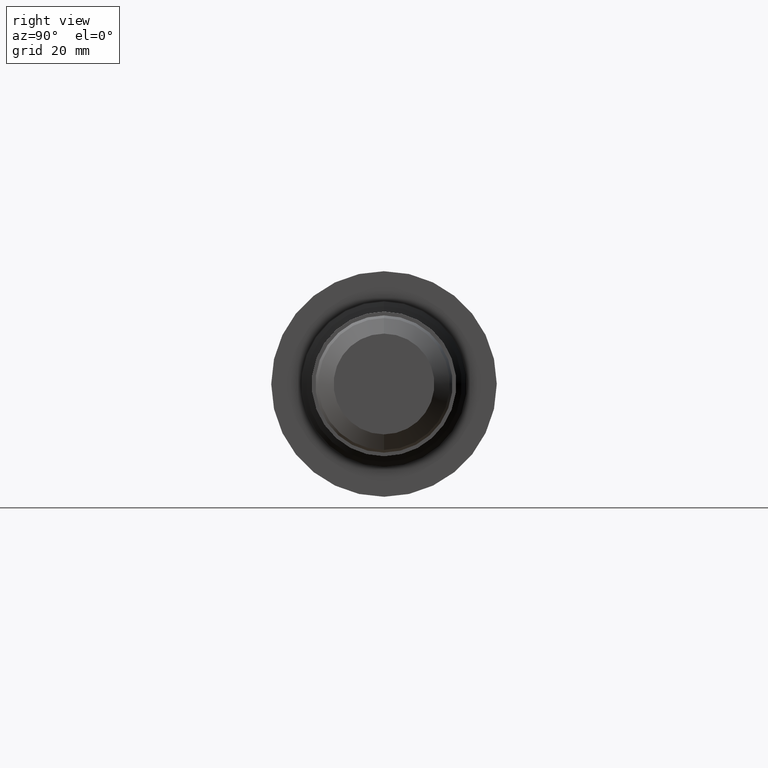
[diagram: clean part render]
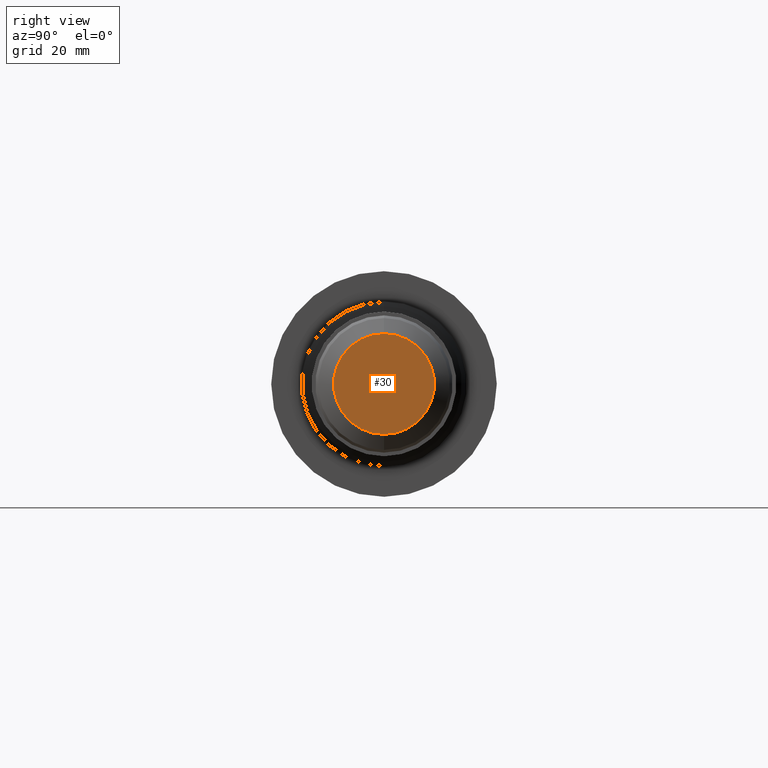
[diagram: same view with one face highlighted and labeled with its STEP entity id]
A machine part, right view. The second image highlights one B-rep face of the part: STEP entity #30.
In plain terms, the highlighted planar face has unit normal (-1, 0, -0).
Its self-contained STEP definition (entity closure, byte-faithful):
#30 = ADVANCED_FACE ( 'NONE', ( #673 ), #428, .F. ) ;
#46 = CARTESIAN_POINT ( 'NONE',  ( 5.500000000000000000, 0.0000000000000000000, 0.4209961894323342446 ) ) ;
#183 = CIRCLE ( 'NONE', #356, 0.4209961894323342446 ) ;
#244 = CIRCLE ( 'NONE', #553, 0.4209961894323342446 ) ;
#250 = CARTESIAN_POINT ( 'NONE',  ( 5.500000000000000000, 5.951147787459089409E-17, -0.4209961894323342446 ) ) ;
#253 = AXIS2_PLACEMENT_3D ( 'NONE', #453, #397, #389 ) ;
#284 = DIRECTION ( 'NONE',  ( -1.000000000000000000, -0.0000000000000000000, -0.0000000000000000000 ) ) ;
#290 = VERTEX_POINT ( 'NONE', #250 ) ;
#348 = DIRECTION ( 'NONE',  ( 0.0000000000000000000, 0.0000000000000000000, 1.000000000000000000 ) ) ;
#356 = AXIS2_PLACEMENT_3D ( 'NONE', #669, #284, #348 ) ;
#389 = DIRECTION ( 'NONE',  ( -0.0000000000000000000, 0.0000000000000000000, 1.000000000000000000 ) ) ;
#397 = DIRECTION ( 'NONE',  ( -1.000000000000000000, 0.0000000000000000000, -0.0000000000000000000 ) ) ;
#404 = EDGE_LOOP ( 'NONE', ( #561, #662 ) ) ;
#428 = PLANE ( 'NONE',  #253 ) ;
#439 = DIRECTION ( 'NONE',  ( 0.0000000000000000000, 0.0000000000000000000, 1.000000000000000000 ) ) ;
#440 = EDGE_CURVE ( 'NONE', #290, #852, #244, .T. ) ;
#453 = CARTESIAN_POINT ( 'NONE',  ( 5.500000000000000000, 0.4209961894323342446, 0.0000000000000000000 ) ) ;
#535 = EDGE_CURVE ( 'NONE', #852, #290, #183, .T. ) ;
#553 = AXIS2_PLACEMENT_3D ( 'NONE', #631, #683, #439 ) ;
#561 = ORIENTED_EDGE ( 'NONE', *, *, #535, .F. ) ;
#631 = CARTESIAN_POINT ( 'NONE',  ( 5.500000000000000000, 0.0000000000000000000, 0.0000000000000000000 ) ) ;
#662 = ORIENTED_EDGE ( 'NONE', *, *, #440, .F. ) ;
#669 = CARTESIAN_POINT ( 'NONE',  ( 5.500000000000000000, 0.0000000000000000000, 0.0000000000000000000 ) ) ;
#673 = FACE_OUTER_BOUND ( 'NONE', #404, .T. ) ;
#683 = DIRECTION ( 'NONE',  ( -1.000000000000000000, -0.0000000000000000000, -0.0000000000000000000 ) ) ;
#852 = VERTEX_POINT ( 'NONE', #46 ) ;